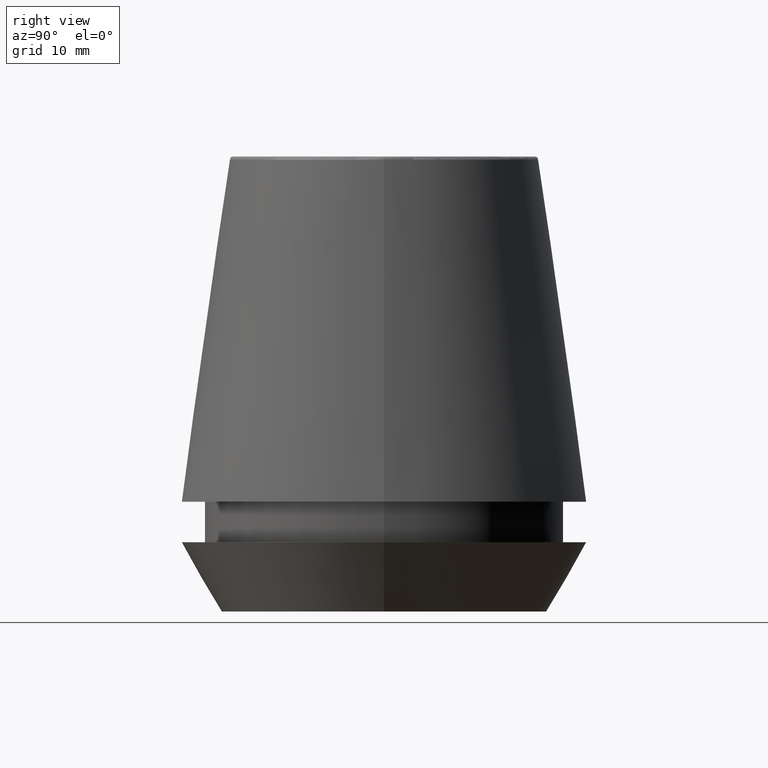
[diagram: clean part render]
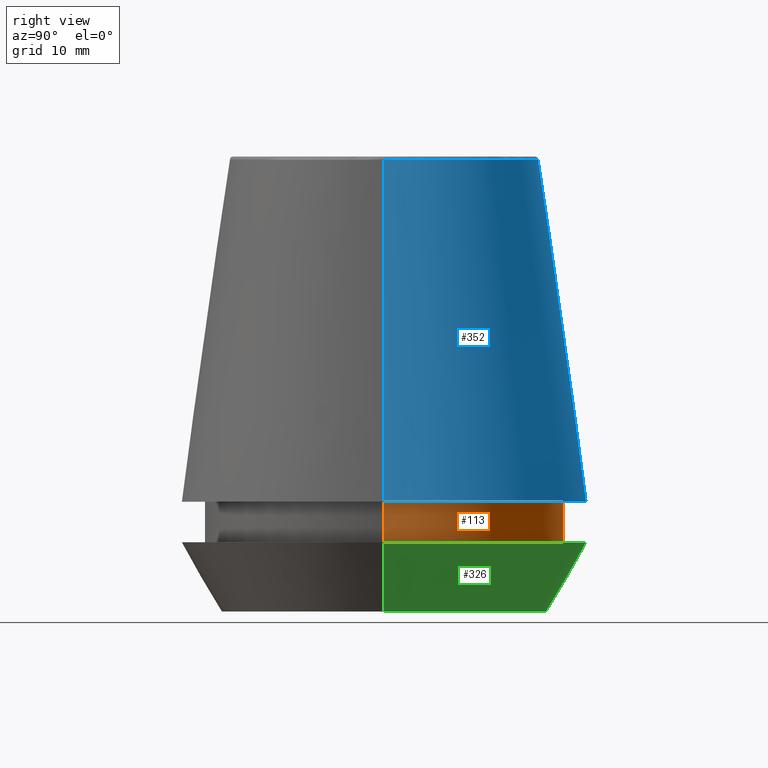
[diagram: same view with three faces highlighted in distinct colors, each labeled with its STEP entity id]
A machine part, right view with three faces highlighted in distinct colors.
Their STEP definitions:

[orange] entity #113 — the highlighted cylindrical surface (partial cylindrical patch) has radius 18.1 mm, axis along (-0, -0, 1).
#3 = CARTESIAN_POINT ( 'NONE',  ( 0.0000000000000000000, 0.0000000000000000000, 6.999999999999999100 ) ) ;
#12 = EDGE_CURVE ( 'NONE', #49, #363, #160, .T. ) ;
#20 = CARTESIAN_POINT ( 'NONE',  ( 0.0000000000000000000, 0.0000000000000000000, 11.09999999999999800 ) ) ;
#29 = DIRECTION ( 'NONE',  ( 1.000000000000000000, 0.0000000000000000000, 0.0000000000000000000 ) ) ;
#35 = AXIS2_PLACEMENT_3D ( 'NONE', #3, #269, #236 ) ;
#49 = VERTEX_POINT ( 'NONE', #232 ) ;
#51 = CARTESIAN_POINT ( 'NONE',  ( 18.10000000000000500, 0.0000000000000000000, 46.00000000000000000 ) ) ;
#55 = ORIENTED_EDGE ( 'NONE', *, *, #212, .F. ) ;
#80 = VECTOR ( 'NONE', #137, 1000.000000000000000 ) ;
#90 = ORIENTED_EDGE ( 'NONE', *, *, #12, .T. ) ;
#102 = DIRECTION ( 'NONE',  ( -0.0000000000000000000, -0.0000000000000000000, 1.000000000000000000 ) ) ;
#113 = ADVANCED_FACE ( 'NONE', ( #277 ), #266, .T. ) ;
#123 = CARTESIAN_POINT ( 'NONE',  ( 18.10000000000000500, 0.0000000000000000000, 11.09999999999999800 ) ) ;
#135 = AXIS2_PLACEMENT_3D ( 'NONE', #20, #223, #314 ) ;
#137 = DIRECTION ( 'NONE',  ( -0.0000000000000000000, -0.0000000000000000000, 1.000000000000000000 ) ) ;
#154 = LINE ( 'NONE', #51, #80 ) ;
#158 = VERTEX_POINT ( 'NONE', #349 ) ;
#160 = CIRCLE ( 'NONE', #35, 18.10000000000000100 ) ;
#177 = EDGE_LOOP ( 'NONE', ( #90, #386, #55, #258 ) ) ;
#189 = CARTESIAN_POINT ( 'NONE',  ( -18.10000000000000500, 2.216610706456710000E-015, 46.00000000000000000 ) ) ;
#207 = CARTESIAN_POINT ( 'NONE',  ( -18.10000000000000100, 2.216610706456709600E-015, 6.999999999999999100 ) ) ;
#212 = EDGE_CURVE ( 'NONE', #382, #158, #334, .T. ) ;
#219 = LINE ( 'NONE', #189, #384 ) ;
#223 = DIRECTION ( 'NONE',  ( -0.0000000000000000000, -0.0000000000000000000, 1.000000000000000000 ) ) ;
#232 = CARTESIAN_POINT ( 'NONE',  ( 18.10000000000000100, 0.0000000000000000000, 6.999999999999999100 ) ) ;
#236 = DIRECTION ( 'NONE',  ( 1.000000000000000000, 0.0000000000000000000, 0.0000000000000000000 ) ) ;
#239 = DIRECTION ( 'NONE',  ( -0.0000000000000000000, -0.0000000000000000000, 1.000000000000000000 ) ) ;
#258 = ORIENTED_EDGE ( 'NONE', *, *, #305, .F. ) ;
#264 = AXIS2_PLACEMENT_3D ( 'NONE', #289, #102, #29 ) ;
#266 = CYLINDRICAL_SURFACE ( 'NONE', #264, 18.10000000000000500 ) ;
#269 = DIRECTION ( 'NONE',  ( -0.0000000000000000000, -0.0000000000000000000, 1.000000000000000000 ) ) ;
#277 = FACE_OUTER_BOUND ( 'NONE', #177, .T. ) ;
#289 = CARTESIAN_POINT ( 'NONE',  ( 0.0000000000000000000, 0.0000000000000000000, 46.00000000000000000 ) ) ;
#305 = EDGE_CURVE ( 'NONE', #49, #382, #154, .T. ) ;
#314 = DIRECTION ( 'NONE',  ( 1.000000000000000000, 0.0000000000000000000, 0.0000000000000000000 ) ) ;
#324 = EDGE_CURVE ( 'NONE', #363, #158, #219, .T. ) ;
#334 = CIRCLE ( 'NONE', #135, 18.10000000000000500 ) ;
#349 = CARTESIAN_POINT ( 'NONE',  ( -18.10000000000000500, 2.216610706456710000E-015, 11.09999999999999800 ) ) ;
#363 = VERTEX_POINT ( 'NONE', #207 ) ;
#382 = VERTEX_POINT ( 'NONE', #123 ) ;
#384 = VECTOR ( 'NONE', #239, 1000.000000000000000 ) ;
#386 = ORIENTED_EDGE ( 'NONE', *, *, #324, .T. ) ;

[blue] entity #352 — the highlighted conical surface has half-angle 8 deg.
#5 = EDGE_CURVE ( 'NONE', #165, #91, #315, .T. ) ;
#7 = VECTOR ( 'NONE', #155, 1000.000000000000000 ) ;
#14 = CONICAL_SURFACE ( 'NONE', #244, 20.50032537154048700, 0.1396263401595396200 ) ;
#15 = LINE ( 'NONE', #376, #7 ) ;
#16 = EDGE_CURVE ( 'NONE', #165, #173, #15, .T. ) ;
#19 = ORIENTED_EDGE ( 'NONE', *, *, #16, .T. ) ;
#47 = AXIS2_PLACEMENT_3D ( 'NONE', #270, #194, #61 ) ;
#61 = DIRECTION ( 'NONE',  ( 1.000000000000000000, 0.0000000000000000000, 0.0000000000000000000 ) ) ;
#91 = VERTEX_POINT ( 'NONE', #260 ) ;
#105 = ORIENTED_EDGE ( 'NONE', *, *, #5, .F. ) ;
#117 = CARTESIAN_POINT ( 'NONE',  ( 15.64384277279740400, 2.213191991290356800E-015, 45.65566924038402900 ) ) ;
#129 = FACE_OUTER_BOUND ( 'NONE', #205, .T. ) ;
#132 = ORIENTED_EDGE ( 'NONE', *, *, #316, .T. ) ;
#142 = CIRCLE ( 'NONE', #226, 20.50032537154048700 ) ;
#151 = CARTESIAN_POINT ( 'NONE',  ( 0.0000000000000000000, 0.0000000000000000000, 11.09999999999999800 ) ) ;
#152 = CARTESIAN_POINT ( 'NONE',  ( 20.50032537154048700, 2.510565784773633700E-015, 11.09999999999999800 ) ) ;
#155 = DIRECTION ( 'NONE',  ( 0.1391731009600587200, 1.704378926181473400E-017, -0.9902680687415712500 ) ) ;
#164 = CARTESIAN_POINT ( 'NONE',  ( 0.0000000000000000000, 0.0000000000000000000, 11.09999999999999800 ) ) ;
#165 = VERTEX_POINT ( 'NONE', #117 ) ;
#173 = VERTEX_POINT ( 'NONE', #152 ) ;
#184 = VECTOR ( 'NONE', #358, 1000.000000000000000 ) ;
#194 = DIRECTION ( 'NONE',  ( -0.0000000000000000000, -0.0000000000000000000, 1.000000000000000000 ) ) ;
#205 = EDGE_LOOP ( 'NONE', ( #105, #19, #132, #286 ) ) ;
#218 = DIRECTION ( 'NONE',  ( -0.0000000000000000000, -0.0000000000000000000, 1.000000000000000000 ) ) ;
#226 = AXIS2_PLACEMENT_3D ( 'NONE', #164, #218, #287 ) ;
#228 = DIRECTION ( 'NONE',  ( 0.0000000000000000000, 0.0000000000000000000, -1.000000000000000000 ) ) ;
#238 = CARTESIAN_POINT ( 'NONE',  ( -20.50032537154048700, 0.0000000000000000000, 11.09999999999999800 ) ) ;
#244 = AXIS2_PLACEMENT_3D ( 'NONE', #151, #228, #248 ) ;
#248 = DIRECTION ( 'NONE',  ( -1.000000000000000000, 0.0000000000000000000, 0.0000000000000000000 ) ) ;
#254 = LINE ( 'NONE', #342, #184 ) ;
#260 = CARTESIAN_POINT ( 'NONE',  ( -15.64384277279740400, 0.0000000000000000000, 45.65566924038402900 ) ) ;
#270 = CARTESIAN_POINT ( 'NONE',  ( 0.0000000000000000000, 0.0000000000000000000, 45.65566924038402900 ) ) ;
#286 = ORIENTED_EDGE ( 'NONE', *, *, #338, .F. ) ;
#287 = DIRECTION ( 'NONE',  ( 1.000000000000000000, 0.0000000000000000000, 0.0000000000000000000 ) ) ;
#315 = CIRCLE ( 'NONE', #47, 15.64384277279740400 ) ;
#316 = EDGE_CURVE ( 'NONE', #173, #327, #142, .T. ) ;
#327 = VERTEX_POINT ( 'NONE', #238 ) ;
#338 = EDGE_CURVE ( 'NONE', #91, #327, #254, .T. ) ;
#342 = CARTESIAN_POINT ( 'NONE',  ( -20.50032537154048700, 0.0000000000000000000, 11.09999999999999800 ) ) ;
#352 = ADVANCED_FACE ( 'NONE', ( #129 ), #14, .T. ) ;
#358 = DIRECTION ( 'NONE',  ( -0.1391731009600587200, 0.0000000000000000000, -0.9902680687415712500 ) ) ;
#376 = CARTESIAN_POINT ( 'NONE',  ( 20.50032537154048700, 2.510565784773633700E-015, 11.09999999999999800 ) ) ;

[green] entity #326 — the highlighted conical surface has half-angle 30 deg.
#11 = CARTESIAN_POINT ( 'NONE',  ( -20.50000000000000000, 2.510525938252074100E-015, 7.000000000000006200 ) ) ;
#44 = DIRECTION ( 'NONE',  ( 0.4999999999999941700, 0.0000000000000000000, 0.8660254037844420400 ) ) ;
#67 = FACE_OUTER_BOUND ( 'NONE', #243, .T. ) ;
#69 = CARTESIAN_POINT ( 'NONE',  ( 20.50000000000000000, 0.0000000000000000000, 7.000000000000006200 ) ) ;
#83 = DIRECTION ( 'NONE',  ( 1.000000000000000000, 0.0000000000000000000, 0.0000000000000000000 ) ) ;
#108 = CONICAL_SURFACE ( 'NONE', #229, 16.45854811567268100, 0.5235987755982921500 ) ;
#116 = DIRECTION ( 'NONE',  ( -0.0000000000000000000, -0.0000000000000000000, 1.000000000000000000 ) ) ;
#131 = VERTEX_POINT ( 'NONE', #271 ) ;
#133 = DIRECTION ( 'NONE',  ( -0.0000000000000000000, -0.0000000000000000000, 1.000000000000000000 ) ) ;
#136 = VERTEX_POINT ( 'NONE', #69 ) ;
#141 = VERTEX_POINT ( 'NONE', #323 ) ;
#166 = DIRECTION ( 'NONE',  ( -0.0000000000000000000, -0.0000000000000000000, 1.000000000000000000 ) ) ;
#168 = ORIENTED_EDGE ( 'NONE', *, *, #204, .T. ) ;
#169 = EDGE_CURVE ( 'NONE', #136, #220, #191, .T. ) ;
#183 = DIRECTION ( 'NONE',  ( 1.000000000000000000, 0.0000000000000000000, 0.0000000000000000000 ) ) ;
#190 = LINE ( 'NONE', #309, #263 ) ;
#191 = CIRCLE ( 'NONE', #298, 20.50000000000000000 ) ;
#204 = EDGE_CURVE ( 'NONE', #131, #141, #347, .T. ) ;
#220 = VERTEX_POINT ( 'NONE', #11 ) ;
#221 = CARTESIAN_POINT ( 'NONE',  ( -16.45854811567268100, 2.015590826847124800E-015, 0.0000000000000000000 ) ) ;
#229 = AXIS2_PLACEMENT_3D ( 'NONE', #371, #166, #183 ) ;
#243 = EDGE_LOOP ( 'NONE', ( #168, #290, #301, #297 ) ) ;
#251 = CARTESIAN_POINT ( 'NONE',  ( 0.0000000000000000000, 0.0000000000000000000, 0.0000000000000000000 ) ) ;
#257 = VECTOR ( 'NONE', #312, 1000.000000000000000 ) ;
#263 = VECTOR ( 'NONE', #44, 1000.000000000000000 ) ;
#271 = CARTESIAN_POINT ( 'NONE',  ( 16.45854811567268100, 0.0000000000000000000, 0.0000000000000000000 ) ) ;
#290 = ORIENTED_EDGE ( 'NONE', *, *, #319, .T. ) ;
#291 = AXIS2_PLACEMENT_3D ( 'NONE', #251, #116, #83 ) ;
#297 = ORIENTED_EDGE ( 'NONE', *, *, #329, .F. ) ;
#298 = AXIS2_PLACEMENT_3D ( 'NONE', #320, #133, #303 ) ;
#301 = ORIENTED_EDGE ( 'NONE', *, *, #169, .F. ) ;
#303 = DIRECTION ( 'NONE',  ( 1.000000000000000000, 0.0000000000000000000, 0.0000000000000000000 ) ) ;
#309 = CARTESIAN_POINT ( 'NONE',  ( 16.45854811567268100, 0.0000000000000000000, 0.0000000000000000000 ) ) ;
#312 = DIRECTION ( 'NONE',  ( -0.4999999999999941700, 6.123233995736694500E-017, 0.8660254037844420400 ) ) ;
#319 = EDGE_CURVE ( 'NONE', #141, #220, #372, .T. ) ;
#320 = CARTESIAN_POINT ( 'NONE',  ( 0.0000000000000000000, 0.0000000000000000000, 7.000000000000006200 ) ) ;
#323 = CARTESIAN_POINT ( 'NONE',  ( -16.45854811567268100, 2.263058382549599700E-015, 0.0000000000000000000 ) ) ;
#326 = ADVANCED_FACE ( 'NONE', ( #67 ), #108, .T. ) ;
#329 = EDGE_CURVE ( 'NONE', #131, #136, #190, .T. ) ;
#347 = CIRCLE ( 'NONE', #291, 16.45854811567268100 ) ;
#371 = CARTESIAN_POINT ( 'NONE',  ( 0.0000000000000000000, 0.0000000000000000000, 0.0000000000000000000 ) ) ;
#372 = LINE ( 'NONE', #221, #257 ) ;